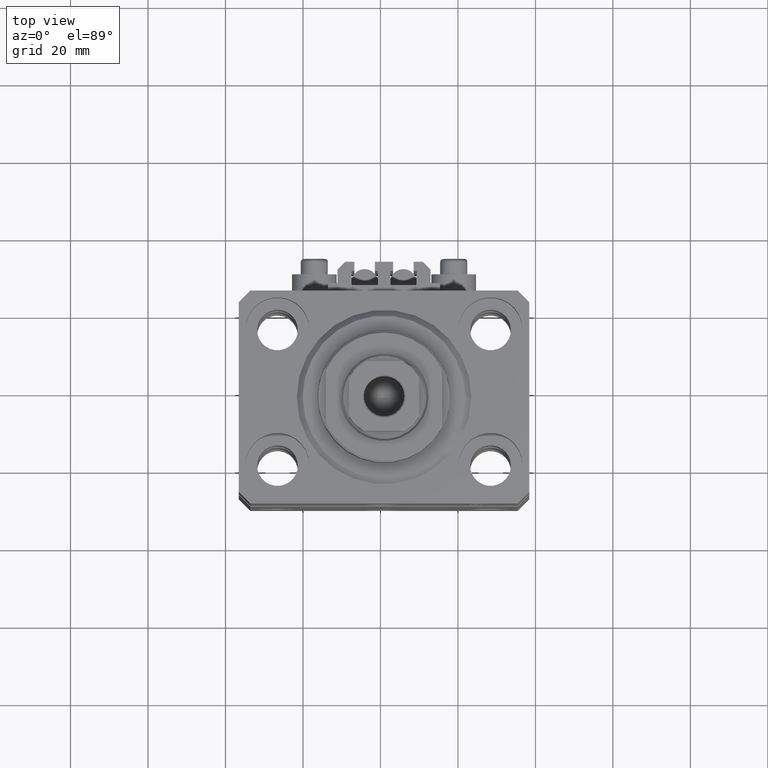
[diagram: clean part render]
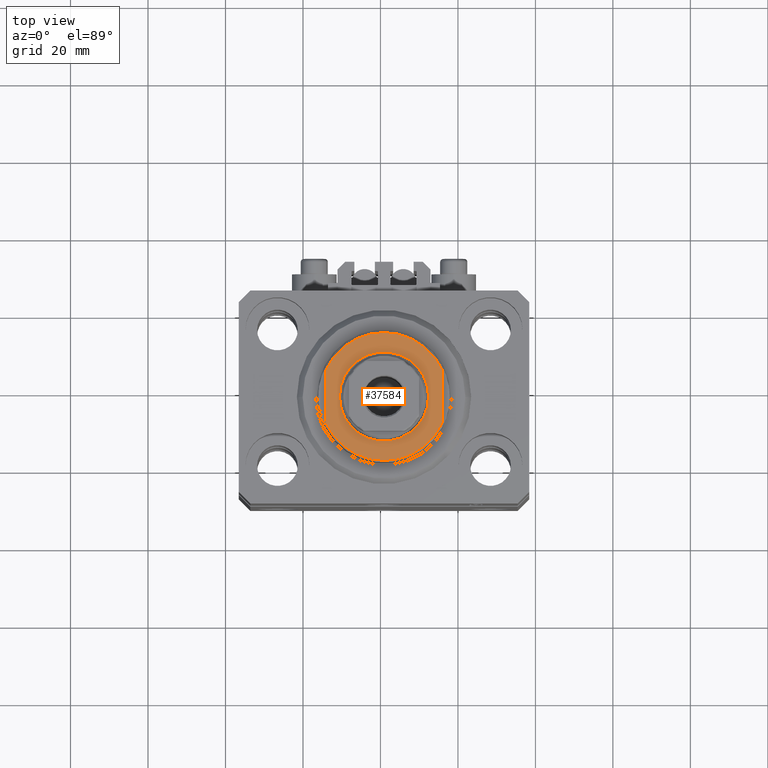
[diagram: same view with one face highlighted and labeled with its STEP entity id]
A machine part, top view. The second image highlights one B-rep face of the part: STEP entity #37584.
In plain terms, the highlighted planar face has unit normal (0, 0, 1).
Its self-contained STEP definition (entity closure, byte-faithful):
#484 = FACE_BOUND ( 'NONE', #27122, .T. ) ;
#1146 = CARTESIAN_POINT ( 'NONE',  ( -11.50000000000000355, 0.000000000000000000, -8.000000000000000000 ) ) ;
#2456 = DIRECTION ( 'NONE',  ( -0.000000000000000000, -0.000000000000000000, 1.000000000000000000 ) ) ;
#2692 = DIRECTION ( 'NONE',  ( 0.000000000000000000, 0.000000000000000000, -1.000000000000000000 ) ) ;
#3109 = EDGE_LOOP ( 'NONE', ( #14861, #8043, #47676, #33344 ) ) ;
#3126 = DIRECTION ( 'NONE',  ( -0.000000000000000000, -1.000000000000000000, -0.000000000000000000 ) ) ;
#3478 = AXIS2_PLACEMENT_3D ( 'NONE', #20723, #2456, #32155 ) ;
#6199 = VECTOR ( 'NONE', #32454, 1000.000000000000000 ) ;
#7666 = EDGE_CURVE ( 'NONE', #39207, #13005, #14574, .T. ) ;
#7807 = VERTEX_POINT ( 'NONE', #1146 ) ;
#8043 = ORIENTED_EDGE ( 'NONE', *, *, #42133, .T. ) ;
#8794 = AXIS2_PLACEMENT_3D ( 'NONE', #11464, #19488, #15598 ) ;
#9378 = VERTEX_POINT ( 'NONE', #37114 ) ;
#10746 = AXIS2_PLACEMENT_3D ( 'NONE', #18026, #11199, #32612 ) ;
#10774 = AXIS2_PLACEMENT_3D ( 'NONE', #47496, #2692, #20966 ) ;
#11199 = DIRECTION ( 'NONE',  ( -0.000000000000000000, -0.000000000000000000, 1.000000000000000000 ) ) ;
#11464 = CARTESIAN_POINT ( 'NONE',  ( 0.000000000000000000, 0.000000000000000000, -8.000000000000000000 ) ) ;
#11549 = ORIENTED_EDGE ( 'NONE', *, *, #39486, .T. ) ;
#13005 = VERTEX_POINT ( 'NONE', #34352 ) ;
#14574 = LINE ( 'NONE', #36481, #47333 ) ;
#14861 = ORIENTED_EDGE ( 'NONE', *, *, #39719, .T. ) ;
#15277 = DIRECTION ( 'NONE',  ( 0.000000000000000000, 0.000000000000000000, -1.000000000000000000 ) ) ;
#15598 = DIRECTION ( 'NONE',  ( -1.000000000000000000, 0.000000000000000000, -0.000000000000000000 ) ) ;
#17624 = LINE ( 'NONE', #29045, #6199 ) ;
#18026 = CARTESIAN_POINT ( 'NONE',  ( 0.000000000000000000, 0.000000000000000000, -8.000000000000000000 ) ) ;
#19303 = CIRCLE ( 'NONE', #10746, 11.50000000000000355 ) ;
#19488 = DIRECTION ( 'NONE',  ( 0.000000000000000000, 0.000000000000000000, -1.000000000000000000 ) ) ;
#20177 = EDGE_CURVE ( 'NONE', #7807, #30822, #19303, .T. ) ;
#20723 = CARTESIAN_POINT ( 'NONE',  ( 0.000000000000000000, 0.000000000000000000, -8.000000000000000000 ) ) ;
#20966 = DIRECTION ( 'NONE',  ( -1.000000000000000000, 0.000000000000000000, 0.000000000000000000 ) ) ;
#21510 = EDGE_CURVE ( 'NONE', #43063, #13005, #31758, .T. ) ;
#27122 = EDGE_LOOP ( 'NONE', ( #29704, #11549 ) ) ;
#29045 = CARTESIAN_POINT ( 'NONE',  ( 15.00000000000000000, -42.42640687119285303, -8.000000000000000000 ) ) ;
#29704 = ORIENTED_EDGE ( 'NONE', *, *, #20177, .T. ) ;
#30192 = PLANE ( 'NONE',  #8794 ) ;
#30822 = VERTEX_POINT ( 'NONE', #47704 ) ;
#31041 = CARTESIAN_POINT ( 'NONE',  ( -14.99999999999999645, 6.873863542433765517, -8.000000000000000000 ) ) ;
#31479 = AXIS2_PLACEMENT_3D ( 'NONE', #33277, #15277, #37669 ) ;
#31758 = CIRCLE ( 'NONE', #10774, 16.50000000000000000 ) ;
#32155 = DIRECTION ( 'NONE',  ( -1.000000000000000000, 0.000000000000000000, 0.000000000000000000 ) ) ;
#32454 = DIRECTION ( 'NONE',  ( 0.000000000000000000, -1.000000000000000000, -0.000000000000000000 ) ) ;
#32612 = DIRECTION ( 'NONE',  ( -1.000000000000000000, 0.000000000000000000, 0.000000000000000000 ) ) ;
#33007 = CIRCLE ( 'NONE', #3478, 11.50000000000000355 ) ;
#33277 = CARTESIAN_POINT ( 'NONE',  ( 0.000000000000000000, 0.000000000000000000, -8.000000000000000000 ) ) ;
#33344 = ORIENTED_EDGE ( 'NONE', *, *, #7666, .F. ) ;
#34352 = CARTESIAN_POINT ( 'NONE',  ( -14.99999999999999645, -6.873863542433765517, -8.000000000000000000 ) ) ;
#36481 = CARTESIAN_POINT ( 'NONE',  ( -15.00000000000000000, -42.42640687119285303, -8.000000000000000000 ) ) ;
#37114 = CARTESIAN_POINT ( 'NONE',  ( 14.99999999999999645, 6.873863542433765517, -8.000000000000000000 ) ) ;
#37584 = ADVANCED_FACE ( 'NONE', ( #484, #41170 ), #30192, .T. ) ;
#37669 = DIRECTION ( 'NONE',  ( -1.000000000000000000, 0.000000000000000000, 0.000000000000000000 ) ) ;
#39207 = VERTEX_POINT ( 'NONE', #31041 ) ;
#39486 = EDGE_CURVE ( 'NONE', #30822, #7807, #33007, .T. ) ;
#39719 = EDGE_CURVE ( 'NONE', #39207, #9378, #46284, .T. ) ;
#40310 = CARTESIAN_POINT ( 'NONE',  ( 14.99999999999999645, -6.873863542433765517, -8.000000000000000000 ) ) ;
#41170 = FACE_OUTER_BOUND ( 'NONE', #3109, .T. ) ;
#42133 = EDGE_CURVE ( 'NONE', #9378, #43063, #17624, .T. ) ;
#43063 = VERTEX_POINT ( 'NONE', #40310 ) ;
#46284 = CIRCLE ( 'NONE', #31479, 16.50000000000000000 ) ;
#47333 = VECTOR ( 'NONE', #3126, 1000.000000000000000 ) ;
#47496 = CARTESIAN_POINT ( 'NONE',  ( 0.000000000000000000, 0.000000000000000000, -8.000000000000000000 ) ) ;
#47676 = ORIENTED_EDGE ( 'NONE', *, *, #21510, .T. ) ;
#47704 = CARTESIAN_POINT ( 'NONE',  ( 11.50000000000000355, 1.408343819019456570E-15, -8.000000000000000000 ) ) ;